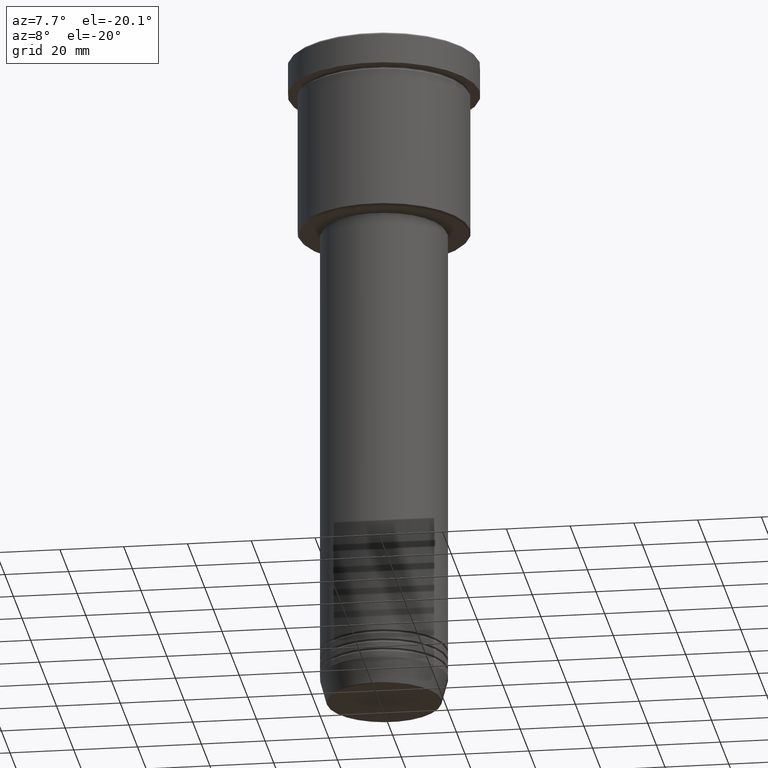
[diagram: clean part render]
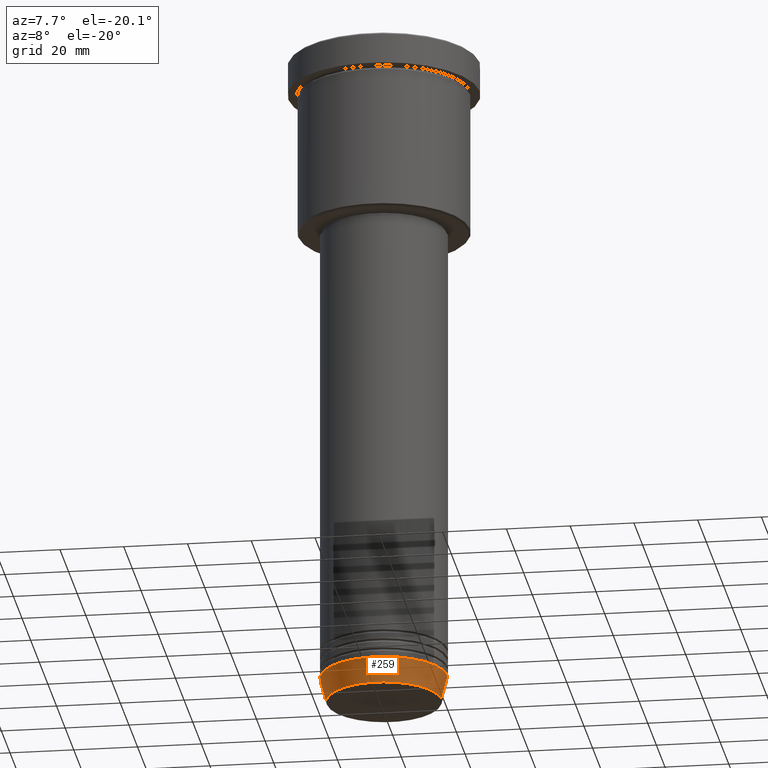
[diagram: same view with one face highlighted and labeled with its STEP entity id]
A machine part, auxiliary view. The second image highlights one B-rep face of the part: STEP entity #259.
In plain terms, the highlighted conical surface has half-angle 15 deg.
Its self-contained STEP definition (entity closure, byte-faithful):
#27 = EDGE_CURVE ( 'NONE', #945, #642, #483, .T. ) ;
#45 = EDGE_LOOP ( 'NONE', ( #594, #418, #310, #993 ) ) ;
#88 = DIRECTION ( 'NONE',  ( -0.000000000000000000, -0.000000000000000000, 1.000000000000000000 ) ) ;
#108 = DIRECTION ( 'NONE',  ( 1.000000000000000000, 0.000000000000000000, 0.000000000000000000 ) ) ;
#126 = CARTESIAN_POINT ( 'NONE',  ( -20.00000000000000000, 2.449293598294706513E-15, -203.0000000000000000 ) ) ;
#135 = DIRECTION ( 'NONE',  ( -0.2588190451025212391, 3.169619151431771721E-17, 0.9659258262890680902 ) ) ;
#216 = CIRCLE ( 'NONE', #804, 17.95570587970605558 ) ;
#259 = ADVANCED_FACE ( 'NONE', ( #1092 ), #895, .T. ) ;
#264 = LINE ( 'NONE', #1140, #1079 ) ;
#291 = CARTESIAN_POINT ( 'NONE',  ( 0.000000000000000000, 0.000000000000000000, -203.0000000000000000 ) ) ;
#310 = ORIENTED_EDGE ( 'NONE', *, *, #873, .T. ) ;
#329 = DIRECTION ( 'NONE',  ( 0.2588190451025212391, 0.000000000000000000, 0.9659258262890680902 ) ) ;
#330 = EDGE_CURVE ( 'NONE', #642, #925, #1041, .T. ) ;
#375 = CARTESIAN_POINT ( 'NONE',  ( 20.00000000000000000, 0.000000000000000000, -203.0000000000000000 ) ) ;
#385 = DIRECTION ( 'NONE',  ( -0.000000000000000000, -0.000000000000000000, 1.000000000000000000 ) ) ;
#414 = AXIS2_PLACEMENT_3D ( 'NONE', #291, #744, #108 ) ;
#418 = ORIENTED_EDGE ( 'NONE', *, *, #1000, .T. ) ;
#483 = LINE ( 'NONE', #717, #1016 ) ;
#594 = ORIENTED_EDGE ( 'NONE', *, *, #27, .F. ) ;
#633 = CARTESIAN_POINT ( 'NONE',  ( 0.000000000000000000, 0.000000000000000000, -210.6294095225512706 ) ) ;
#642 = VERTEX_POINT ( 'NONE', #126 ) ;
#653 = DIRECTION ( 'NONE',  ( 1.000000000000000000, 0.000000000000000000, 0.000000000000000000 ) ) ;
#697 = VERTEX_POINT ( 'NONE', #1107 ) ;
#717 = CARTESIAN_POINT ( 'NONE',  ( -20.00000000000000000, 2.449293598294706513E-15, -203.0000000000000000 ) ) ;
#744 = DIRECTION ( 'NONE',  ( -0.000000000000000000, -0.000000000000000000, 1.000000000000000000 ) ) ;
#803 = CARTESIAN_POINT ( 'NONE',  ( 0.000000000000000000, 0.000000000000000000, -203.0000000000000000 ) ) ;
#804 = AXIS2_PLACEMENT_3D ( 'NONE', #633, #385, #653 ) ;
#832 = CARTESIAN_POINT ( 'NONE',  ( -17.95570587970605558, 2.324116685748020188E-15, -210.6294095225512706 ) ) ;
#873 = EDGE_CURVE ( 'NONE', #697, #925, #264, .T. ) ;
#895 = CONICAL_SURFACE ( 'NONE', #414, 20.00000000000000000, 0.2617993877991499629 ) ;
#925 = VERTEX_POINT ( 'NONE', #375 ) ;
#945 = VERTEX_POINT ( 'NONE', #832 ) ;
#993 = ORIENTED_EDGE ( 'NONE', *, *, #330, .F. ) ;
#995 = DIRECTION ( 'NONE',  ( 1.000000000000000000, 0.000000000000000000, 0.000000000000000000 ) ) ;
#1000 = EDGE_CURVE ( 'NONE', #945, #697, #216, .T. ) ;
#1016 = VECTOR ( 'NONE', #135, 1000.000000000000114 ) ;
#1041 = CIRCLE ( 'NONE', #1124, 20.00000000000000000 ) ;
#1079 = VECTOR ( 'NONE', #329, 1000.000000000000114 ) ;
#1092 = FACE_OUTER_BOUND ( 'NONE', #45, .T. ) ;
#1107 = CARTESIAN_POINT ( 'NONE',  ( 17.95570587970605558, 0.000000000000000000, -210.6294095225512706 ) ) ;
#1124 = AXIS2_PLACEMENT_3D ( 'NONE', #803, #88, #995 ) ;
#1140 = CARTESIAN_POINT ( 'NONE',  ( 20.00000000000000000, 0.000000000000000000, -203.0000000000000000 ) ) ;